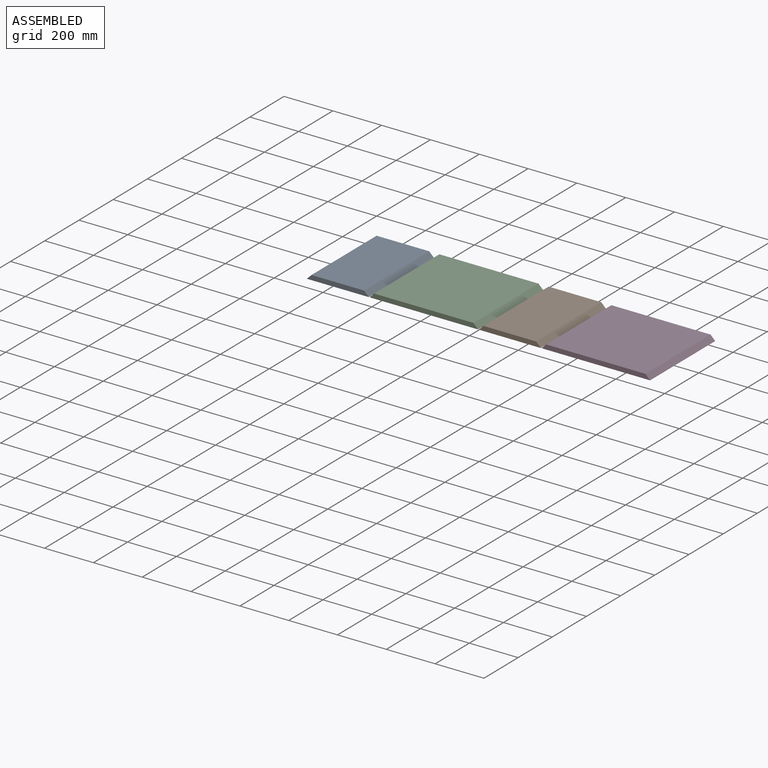
[diagram: assembled view]
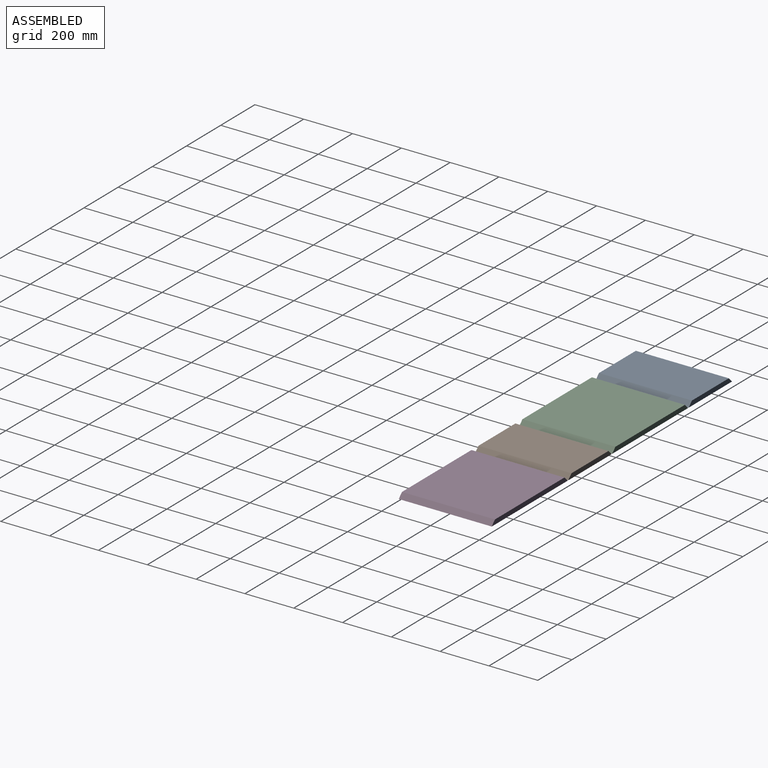
[diagram: assembled view, second angle]
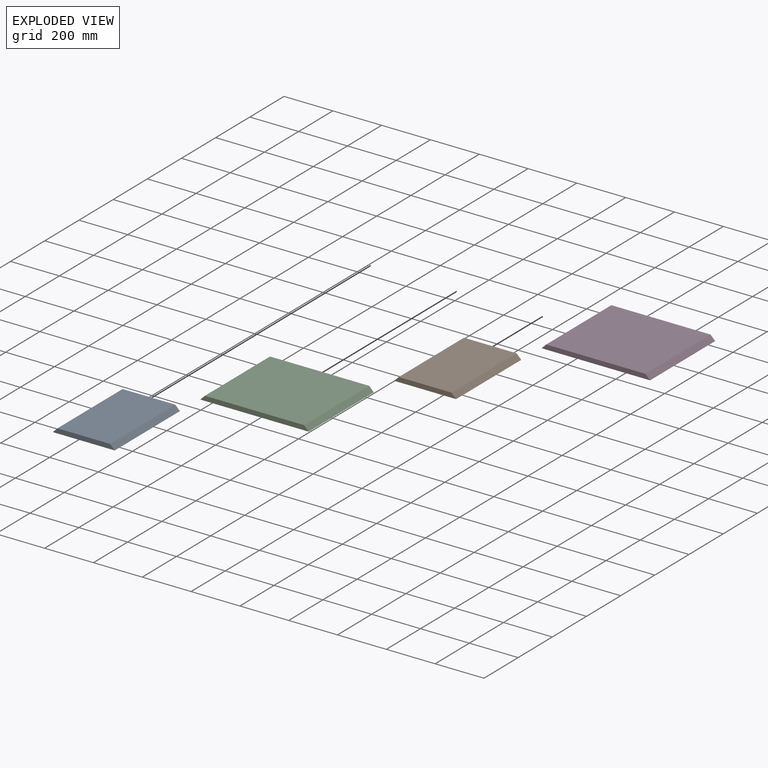
[diagram: exploded view]
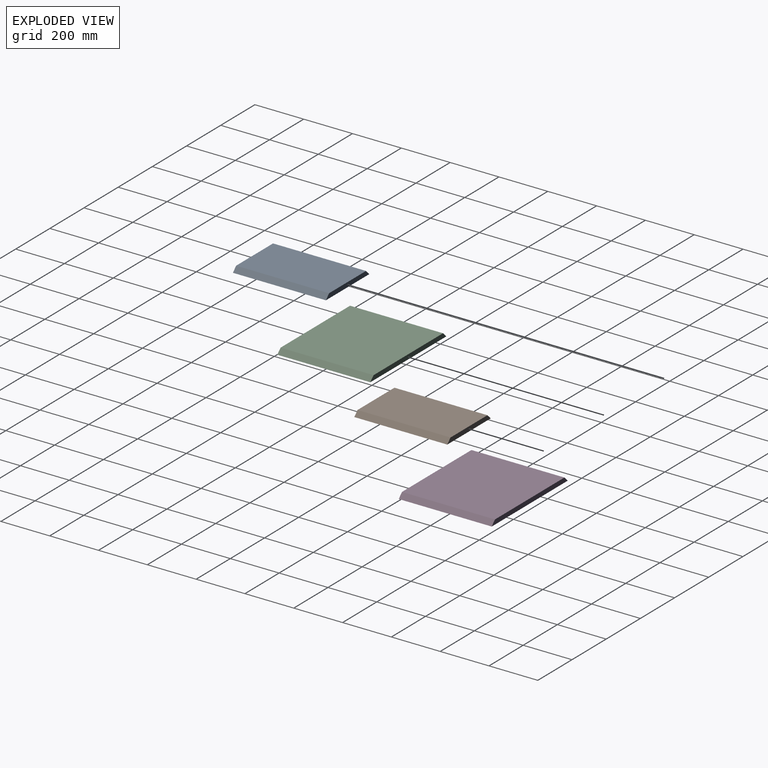
[diagram: exploded view, second angle]
ASSEMBLY  parts=4 mates=3
PART A: 6 faces, bbox 19.1x381x254 mm
  f0: plane 381x215.9mm, normal (1,0,0), area 82257.9mm2, adj f1,f3,f4,f5
  f1: plane 381x19.05mm, normal (0.71,0,0.71), area 10264.4mm2, adj f0,f2,f4,f5
  f2: plane 381x254mm, normal (-1,0,0), area 96774mm2, adj f1,f3,f4,f5
  f3: plane 381x19.05mm, normal (0.71,0,-0.71), area 10264.4mm2, adj f0,f2,f4,f5
  f4: plane 254x19.05mm, normal (0,-1,0), area 4475.8mm2, adj f0,f1,f2,f3
  f5: plane 254x19.05mm, normal (0,1,0), area 4475.8mm2, adj f0,f1,f2,f3
PART B: 6 faces, bbox 19.1x381x254 mm
  f0: plane 381x215.9mm, normal (-1,0,0), area 82257.9mm2, adj f1,f3,f4,f5
  f1: plane 381x19.05mm, normal (-0.71,0,-0.71), area 10264.4mm2, adj f0,f2,f4,f5
  f2: plane 381x254mm, normal (1,0,0), area 96774mm2, adj f1,f3,f4,f5
  f3: plane 381x19.05mm, normal (-0.71,0,0.71), area 10264.4mm2, adj f0,f2,f4,f5
  f4: plane 254x19.05mm, normal (0,-1,0), area 4475.8mm2, adj f0,f1,f2,f3
  f5: plane 254x19.05mm, normal (0,1,0), area 4475.8mm2, adj f0,f1,f2,f3
PART C: 14 faces, bbox 444.5x381x19.1 mm
  f0: plane 444.5x381mm, normal (0,0,-1), area 169227.8mm2, adj f1,f3,f4,f5,f7,f9,f11,f13
  f1: plane 381x19.05mm, normal (0.71,0,0.71), area 10264.4mm2, adj f0,f2,f4,f5
  f2: plane 406.4x381mm, normal (0,0,1), area 154838.4mm2, adj f1,f3,f4,f5
  f3: plane 381x19.05mm, normal (-0.71,0,0.71), area 10264.4mm2, adj f0,f2,f4,f5
  f4: plane 444.5x19.05mm, normal (0,-1,0), area 8104.8mm2, adj f0,f1,f2,f3
  f5: plane 444.5x19.05mm, normal (0,1,0), area 8104.8mm2, adj f0,f1,f2,f3
  f6: cone r=0mm half-angle=59deg, axis (0,0,-1), area 36.9mm2, adj f7
  f7: cylinder r=3.17mm len=12.7mm, axis (0,0,-1), area 253.4mm2, adj f0,f6
  f8: cone r=0mm half-angle=59deg, axis (0,0,-1), area 36.9mm2, adj f9
  f9: cylinder r=3.17mm len=12.7mm, axis (0,0,-1), area 253.4mm2, adj f0,f8
  f10: cone r=0mm half-angle=59deg, axis (0,0,-1), area 36.9mm2, adj f11
  f11: cylinder r=3.17mm len=12.7mm, axis (0,0,-1), area 253.4mm2, adj f0,f10
  f12: cone r=0mm half-angle=59deg, axis (0,0,-1), area 36.9mm2, adj f13
  f13: cylinder r=3.17mm len=12.7mm, axis (0,0,-1), area 253.4mm2, adj f0,f12
PART D: 6 faces, bbox 444.5x381x19.1 mm
  f0: plane 381x19.05mm, normal (-0.71,0,-0.71), area 10264.4mm2, adj f1,f3,f4,f5
  f1: plane 406.4x381mm, normal (0,0,-1), area 154838.4mm2, adj f0,f2,f4,f5
  f2: plane 381x19.05mm, normal (0.71,0,-0.71), area 10264.4mm2, adj f1,f3,f4,f5
  f3: plane 444.5x381mm, normal (0,0,1), area 169354.5mm2, adj f0,f2,f4,f5
  f4: plane 444.5x19.05mm, normal (0,-1,0), area 8104.8mm2, adj f0,f1,f2,f3
  f5: plane 444.5x19.05mm, normal (0,1,0), area 8104.8mm2, adj f0,f1,f2,f3
PLACE A rot(axis=(0,-1,0),90deg) t=(-352.42,0,95.25)mm
PLACE B rot(axis=(0,1,0),90deg) t=(352.43,0,95.25)mm
PLACE C at identity fixed
PLACE D rot(axis=(0,1,0),180deg) t=(704.85,0,0)mm
MATE fastened B.f4 <-> C.f4  axis (0,-1,0) through (225.43,-381,-127)mm
MATE fastened D.f4 <-> B.f4  axis (0,-1,0) through (482.6,-381,-127)mm
MATE fastened A.f4 <-> C.f4  axis (0,-1,0) through (-225.42,-381,-127)mm
